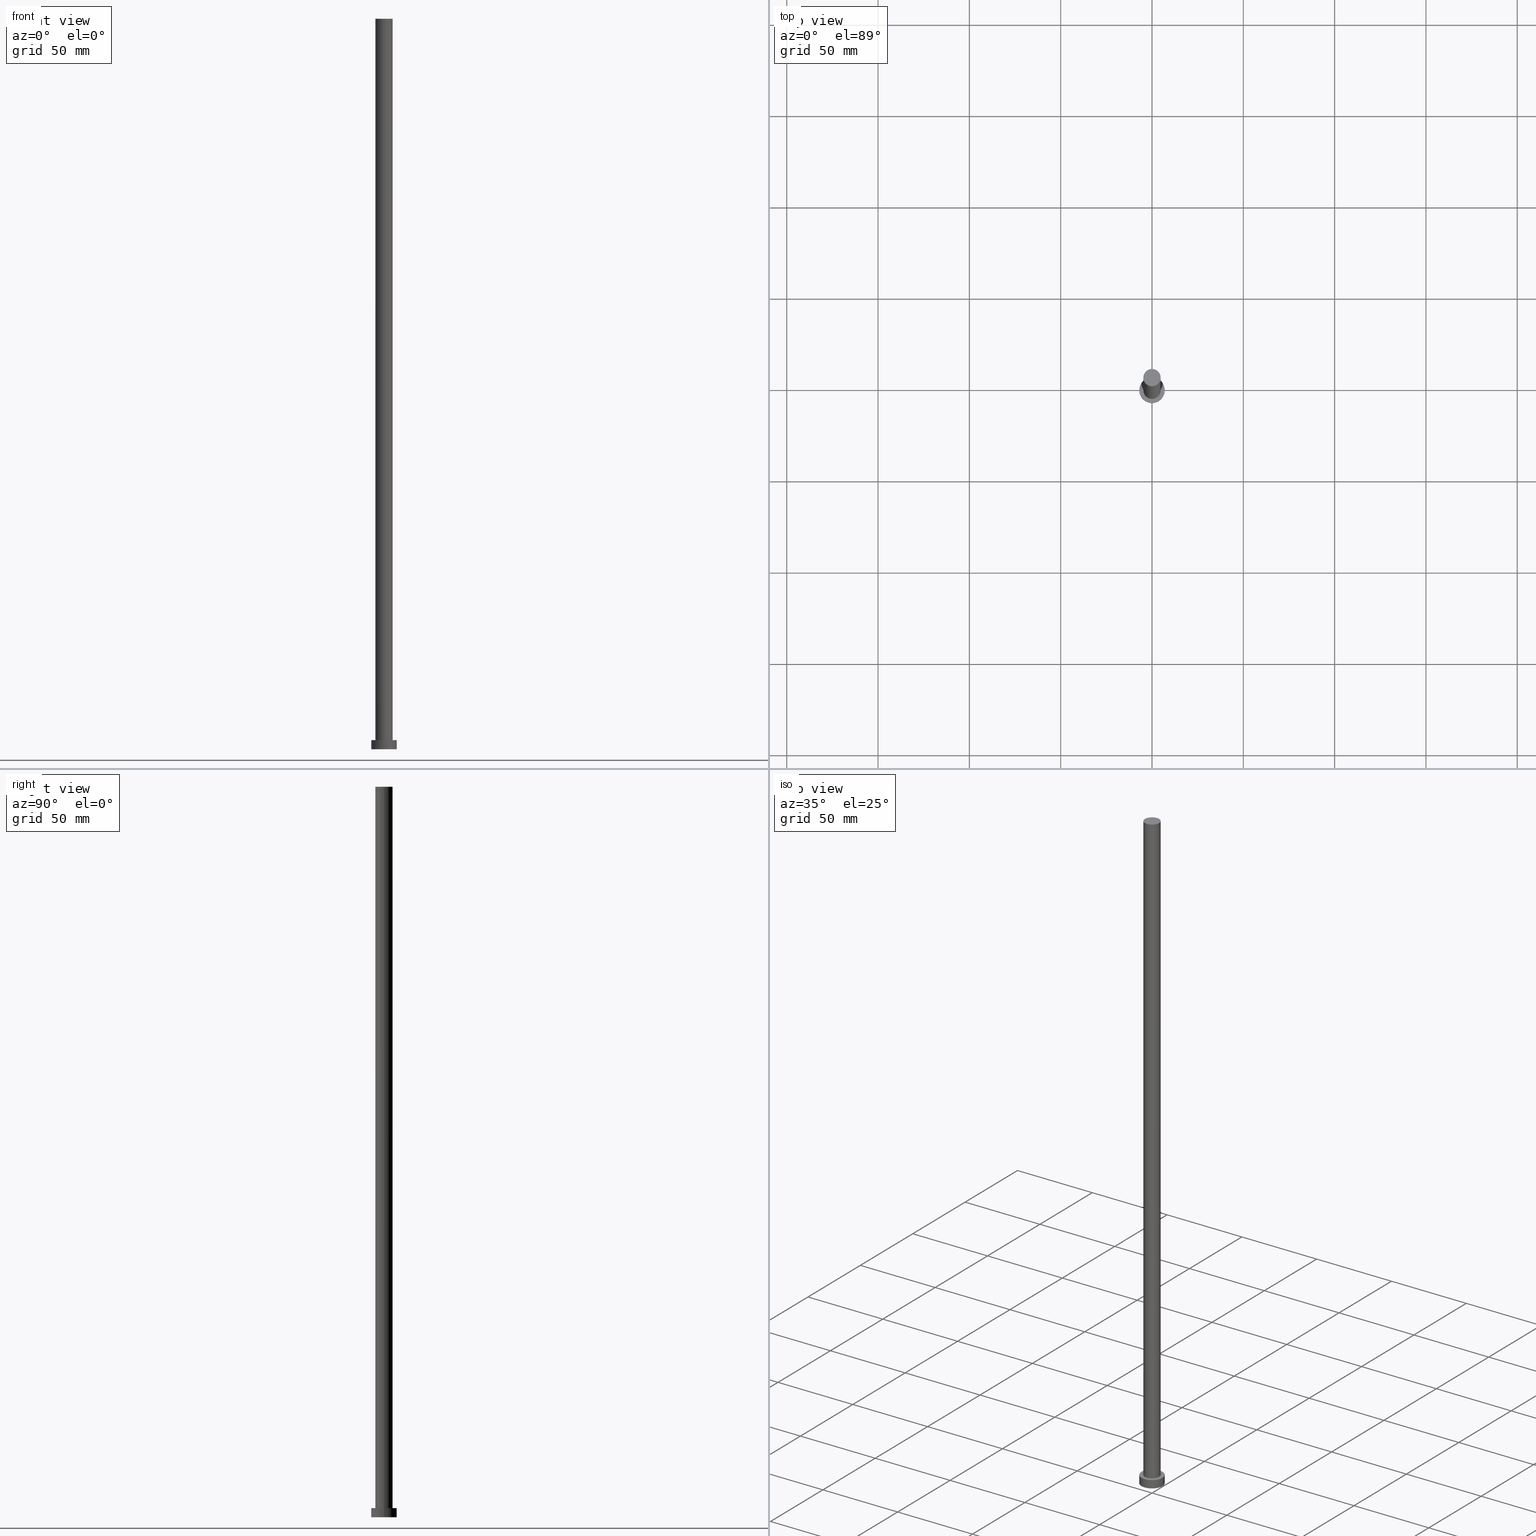
[diagram: canonical four-view strip — front | top / right | iso, engineering-drawing reading convention]
A machine part, canonical four-view strip (front | top / right | iso — engineering-drawing reading convention). The complete STEP part file that produces these views, byte-faithful:
ISO-10303-21;
HEADER;
FILE_DESCRIPTION (( 'STEP AP203' ),
    '1' );
FILE_NAME ('0fe4.STEP',
    '2026-02-06T12:37:14',
    ( '' ),
    ( '' ),
    'SwSTEP 2.0',
    'SolidWorks 2019',
    '' );
FILE_SCHEMA (( 'CONFIG_CONTROL_DESIGN' ));
ENDSEC;

DATA;
#1 =( NAMED_UNIT ( * ) SI_UNIT ( $, .STERADIAN. ) SOLID_ANGLE_UNIT ( ) );
#2 = DIRECTION ( 'NONE',  ( 1.000000000000000000, 0.000000000000000000, -0.000000000000000000 ) ) ;
#3 = APPLICATION_PROTOCOL_DEFINITION ( 'international standard', 'config_control_design', 1994, #43 ) ;
#4 = AXIS2_PLACEMENT_3D ( 'NONE', #95, #174, #137 ) ;
#5 = APPLICATION_CONTEXT ( 'configuration controlled 3d designs of mechanical parts and assemblies' ) ;
#6 = COORDINATED_UNIVERSAL_TIME_OFFSET ( 1, 0, .AHEAD. ) ;
#7 = EDGE_LOOP ( 'NONE', ( #169, #177, #166, #122 ) ) ;
#8 = APPROVAL_ROLE ( '' ) ;
#9 = APPROVAL_DATE_TIME ( #144, #27 ) ;
#10 = PERSON_AND_ORGANIZATION ( #125, #18 ) ;
#11 = ORIENTED_EDGE ( 'NONE', *, *, #22, .F. ) ;
#12 = ADVANCED_FACE ( 'NONE', ( #212 ), #35, .T. ) ;
#13 = AXIS2_PLACEMENT_3D ( 'NONE', #97, #216, #37 ) ;
#14 = ORIENTED_EDGE ( 'NONE', *, *, #251, .T. ) ;
#15 = DIRECTION ( 'NONE',  ( 1.000000000000000000, 0.000000000000000000, 0.000000000000000000 ) ) ;
#16 = CC_DESIGN_PERSON_AND_ORGANIZATION_ASSIGNMENT ( #185, #242, ( #147 ) ) ;
#17 = DIRECTION ( 'NONE',  ( -0.000000000000000000, -0.000000000000000000, -1.000000000000000000 ) ) ;
#18 = ORGANIZATION ( 'NEUR�EN�', 'NEUR�EN�', '' ) ;
#19 = DIRECTION ( 'NONE',  ( -1.000000000000000000, 0.000000000000000000, 0.000000000000000000 ) ) ;
#20 =( LENGTH_UNIT ( ) NAMED_UNIT ( * ) SI_UNIT ( .MILLI., .METRE. ) );
#21 = DIRECTION ( 'NONE',  ( 0.000000000000000000, 0.000000000000000000, 1.000000000000000000 ) ) ;
#22 = EDGE_CURVE ( 'NONE', #23, #92, #210, .T. ) ;
#23 = VERTEX_POINT ( 'NONE', #132 ) ;
#24 = SECURITY_CLASSIFICATION_LEVEL ( 'unclassified' ) ;
#25 = APPROVAL ( #86, 'NEUR�EN�' ) ;
#26 = PERSON_AND_ORGANIZATION ( #125, #18 ) ;
#27 = APPROVAL ( #30, 'NEUR�EN�' ) ;
#28 = DATE_AND_TIME ( #203, #52 ) ;
#29 = CC_DESIGN_APPROVAL ( #25, ( #70 ) ) ;
#30 = APPROVAL_STATUS ( 'not_yet_approved' ) ;
#31 = AXIS2_PLACEMENT_3D ( 'NONE', #75, #175, #19 ) ;
#32 = SECURITY_CLASSIFICATION ( '', '', #24 ) ;
#33 = EDGE_LOOP ( 'NONE', ( #143, #153, #41, #150 ) ) ;
#34 = DIRECTION ( 'NONE',  ( 0.000000000000000000, 0.000000000000000000, 1.000000000000000000 ) ) ;
#35 = CYLINDRICAL_SURFACE ( 'NONE', #68, 7.000000000000000000 ) ;
#36 = VECTOR ( 'NONE', #195, 1000.000000000000000 ) ;
#37 = DIRECTION ( 'NONE',  ( 1.000000000000000000, 0.000000000000000000, 0.000000000000000000 ) ) ;
#38 = LINE ( 'NONE', #160, #36 ) ;
#39 = DIRECTION ( 'NONE',  ( 0.000000000000000000, 0.000000000000000000, 1.000000000000000000 ) ) ;
#40 = CARTESIAN_POINT ( 'NONE',  ( 0.000000000000000000, 0.000000000000000000, 5.000000000000000000 ) ) ;
#41 = ORIENTED_EDGE ( 'NONE', *, *, #248, .T. ) ;
#42 = DATE_TIME_ROLE ( 'creation_date' ) ;
#43 = APPLICATION_CONTEXT ( 'configuration controlled 3d designs of mechanical parts and assemblies' ) ;
#44 = ADVANCED_FACE ( 'NONE', ( #110 ), #50, .T. ) ;
#45 = COORDINATED_UNIVERSAL_TIME_OFFSET ( 1, 0, .AHEAD. ) ;
#46 = COORDINATED_UNIVERSAL_TIME_OFFSET ( 1, 0, .AHEAD. ) ;
#47 = APPLICATION_PROTOCOL_DEFINITION ( 'international standard', 'config_control_design', 1994, #5 ) ;
#48 = PRODUCT_DEFINITION_SHAPE ( 'NONE', 'NONE',  #70 ) ;
#49 = VECTOR ( 'NONE', #17, 1000.000000000000000 ) ;
#50 = CYLINDRICAL_SURFACE ( 'NONE', #109, 4.750000000000000888 ) ;
#51 = EDGE_CURVE ( 'NONE', #108, #239, #229, .T. ) ;
#52 = LOCAL_TIME ( 13, 37, 14.00000000000000000, #163 ) ;
#53 = ORIENTED_EDGE ( 'NONE', *, *, #91, .F. ) ;
#54 = DIRECTION ( 'NONE',  ( -0.000000000000000000, -0.000000000000000000, -1.000000000000000000 ) ) ;
#55 = AXIS2_PLACEMENT_3D ( 'NONE', #81, #142, #74 ) ;
#56 =( NAMED_UNIT ( * ) PLANE_ANGLE_UNIT ( ) SI_UNIT ( $, .RADIAN. ) );
#57 = FACE_OUTER_BOUND ( 'NONE', #90, .T. ) ;
#58 = DESIGN_CONTEXT ( 'detailed design', #5, 'design' ) ;
#59 = DIRECTION ( 'NONE',  ( 0.000000000000000000, 0.000000000000000000, 1.000000000000000000 ) ) ;
#60 = CARTESIAN_POINT ( 'NONE',  ( 7.000000000000000000, 8.572527594031473190E-16, 5.000000000000000000 ) ) ;
#61 = ADVANCED_FACE ( 'NONE', ( #173, #130 ), #211, .T. ) ;
#62 = CARTESIAN_POINT ( 'NONE',  ( 4.750000000000000888, 5.817072295949927426E-16, 400.0000000000000000 ) ) ;
#63 = AXIS2_PLACEMENT_3D ( 'NONE', #135, #233, #98 ) ;
#64 = CARTESIAN_POINT ( 'NONE',  ( -4.750000000000000888, 0.000000000000000000, 5.000000000000000000 ) ) ;
#65 = ORIENTED_EDGE ( 'NONE', *, *, #167, .F. ) ;
#66 = DATE_AND_TIME ( #106, #194 ) ;
#67 = PERSON_AND_ORGANIZATION_ROLE ( 'classification_officer' ) ;
#68 = AXIS2_PLACEMENT_3D ( 'NONE', #225, #93, #231 ) ;
#69 = CC_DESIGN_PERSON_AND_ORGANIZATION_ASSIGNMENT ( #10, #207, ( #198 ) ) ;
#70 = PRODUCT_DEFINITION ( 'NEZN�M�', '', #147, #58 ) ;
#71 = DIRECTION ( 'NONE',  ( 1.000000000000000000, 0.000000000000000000, -0.000000000000000000 ) ) ;
#72 = LOCAL_TIME ( 13, 37, 14.00000000000000000, #6 ) ;
#73 = CARTESIAN_POINT ( 'NONE',  ( 4.750000000000000888, 5.817072295949927426E-16, 5.000000000000000000 ) ) ;
#74 = DIRECTION ( 'NONE',  ( 1.000000000000000000, 0.000000000000000000, 0.000000000000000000 ) ) ;
#75 = CARTESIAN_POINT ( 'NONE',  ( 0.000000000000000000, 0.000000000000000000, 400.0000000000000000 ) ) ;
#76 = VECTOR ( 'NONE', #79, 1000.000000000000000 ) ;
#77 = CARTESIAN_POINT ( 'NONE',  ( -7.000000000000000000, 0.000000000000000000, 0.000000000000000000 ) ) ;
#78 = CARTESIAN_POINT ( 'NONE',  ( 0.000000000000000000, 0.000000000000000000, 5.000000000000000000 ) ) ;
#79 = DIRECTION ( 'NONE',  ( -0.000000000000000000, -0.000000000000000000, -1.000000000000000000 ) ) ;
#80 = CIRCLE ( 'NONE', #4, 4.750000000000000888 ) ;
#81 = CARTESIAN_POINT ( 'NONE',  ( 0.000000000000000000, 0.000000000000000000, 5.000000000000000000 ) ) ;
#82 = CALENDAR_DATE ( 2026, 6, 2 ) ;
#83 = VERTEX_POINT ( 'NONE', #73 ) ;
#84 = PERSON_AND_ORGANIZATION ( #125, #18 ) ;
#85 = AXIS2_PLACEMENT_3D ( 'NONE', #157, #100, #200 ) ;
#86 = APPROVAL_STATUS ( 'not_yet_approved' ) ;
#87 = ORIENTED_EDGE ( 'NONE', *, *, #209, .T. ) ;
#88 = DIRECTION ( 'NONE',  ( 0.000000000000000000, 0.000000000000000000, 1.000000000000000000 ) ) ;
#89 = CC_DESIGN_APPROVAL ( #27, ( #32 ) ) ;
#90 = EDGE_LOOP ( 'NONE', ( #182, #65, #87, #120 ) ) ;
#91 = EDGE_CURVE ( 'NONE', #188, #99, #246, .T. ) ;
#92 = VERTEX_POINT ( 'NONE', #60 ) ;
#93 = DIRECTION ( 'NONE',  ( -0.000000000000000000, -0.000000000000000000, -1.000000000000000000 ) ) ;
#94 = UNCERTAINTY_MEASURE_WITH_UNIT (LENGTH_MEASURE( 1.000000000000000082E-05 ), #20, 'distance_accuracy_value', 'NONE');
#95 = CARTESIAN_POINT ( 'NONE',  ( 0.000000000000000000, 0.000000000000000000, 400.0000000000000000 ) ) ;
#96 = DIRECTION ( 'NONE',  ( 1.000000000000000000, 0.000000000000000000, 0.000000000000000000 ) ) ;
#97 = CARTESIAN_POINT ( 'NONE',  ( 0.000000000000000000, 0.000000000000000000, 0.000000000000000000 ) ) ;
#98 = DIRECTION ( 'NONE',  ( 1.000000000000000000, 0.000000000000000000, -0.000000000000000000 ) ) ;
#99 = VERTEX_POINT ( 'NONE', #77 ) ;
#100 = DIRECTION ( 'NONE',  ( 0.000000000000000000, 0.000000000000000000, 1.000000000000000000 ) ) ;
#101 = CC_DESIGN_SECURITY_CLASSIFICATION ( #32, ( #147 ) ) ;
#102 = VERTEX_POINT ( 'NONE', #64 ) ;
#103 = DATE_TIME_ROLE ( 'classification_date' ) ;
#104 = ORIENTED_EDGE ( 'NONE', *, *, #243, .F. ) ;
#105 = CALENDAR_DATE ( 2026, 6, 2 ) ;
#106 = CALENDAR_DATE ( 2026, 6, 2 ) ;
#107 = DATE_AND_TIME ( #121, #252 ) ;
#108 = VERTEX_POINT ( 'NONE', #62 ) ;
#109 = AXIS2_PLACEMENT_3D ( 'NONE', #131, #54, #187 ) ;
#110 = FACE_OUTER_BOUND ( 'NONE', #33, .T. ) ;
#111 = ADVANCED_FACE ( 'NONE', ( #57 ), #193, .T. ) ;
#112 = CARTESIAN_POINT ( 'NONE',  ( 0.000000000000000000, 0.000000000000000000, 5.000000000000000000 ) ) ;
#113 = ORIENTED_EDGE ( 'NONE', *, *, #22, .T. ) ;
#114 = FACE_OUTER_BOUND ( 'NONE', #199, .T. ) ;
#115 = DIRECTION ( 'NONE',  ( -1.000000000000000000, 0.000000000000000000, 0.000000000000000000 ) ) ;
#116 = APPROVAL_PERSON_ORGANIZATION ( #26, #25, #8 ) ;
#117 = AXIS2_PLACEMENT_3D ( 'NONE', #192, #250, #15 ) ;
#118 = CARTESIAN_POINT ( 'NONE',  ( -4.750000000000000888, 0.000000000000000000, 400.0000000000000000 ) ) ;
#119 = CYLINDRICAL_SURFACE ( 'NONE', #148, 7.000000000000000000 ) ;
#120 = ORIENTED_EDGE ( 'NONE', *, *, #126, .T. ) ;
#121 = CALENDAR_DATE ( 2026, 6, 2 ) ;
#122 = ORIENTED_EDGE ( 'NONE', *, *, #133, .F. ) ;
#123 = AXIS2_PLACEMENT_3D ( 'NONE', #152, #34, #189 ) ;
#124 = APPROVAL_ROLE ( '' ) ;
#125 = PERSON ( 'NEUR�EN�', 'NEUR�EN�', 'NEUR�EN�', ('NEUR�EN�'), ('NEUR�EN�'), ('NEUR�EN�') ) ;
#126 = EDGE_CURVE ( 'NONE', #102, #83, #138, .T. ) ;
#127 = PERSON_AND_ORGANIZATION ( #125, #18 ) ;
#128 = APPROVAL_DATE_TIME ( #28, #224 ) ;
#129 = CLOSED_SHELL ( 'NONE', ( #44, #180, #12, #61, #139, #111, #223 ) ) ;
#130 = FACE_OUTER_BOUND ( 'NONE', #206, .T. ) ;
#131 = CARTESIAN_POINT ( 'NONE',  ( 0.000000000000000000, 0.000000000000000000, 400.0000000000000000 ) ) ;
#132 = CARTESIAN_POINT ( 'NONE',  ( -7.000000000000000000, 0.000000000000000000, 5.000000000000000000 ) ) ;
#133 = EDGE_CURVE ( 'NONE', #23, #99, #156, .T. ) ;
#134 = CC_DESIGN_DATE_AND_TIME_ASSIGNMENT ( #66, #103, ( #32 ) ) ;
#135 = CARTESIAN_POINT ( 'NONE',  ( 0.000000000000000000, 0.000000000000000000, 0.000000000000000000 ) ) ;
#136 = CARTESIAN_POINT ( 'NONE',  ( 7.000000000000000000, 8.572527594031473190E-16, 0.000000000000000000 ) ) ;
#137 = DIRECTION ( 'NONE',  ( 1.000000000000000000, 0.000000000000000000, 0.000000000000000000 ) ) ;
#138 = CIRCLE ( 'NONE', #170, 4.750000000000000888 ) ;
#139 = ADVANCED_FACE ( 'NONE', ( #114 ), #236, .F. ) ;
#140 = CARTESIAN_POINT ( 'NONE',  ( 7.000000000000000000, 8.572527594031473190E-16, 5.000000000000000000 ) ) ;
#141 = ORIENTED_EDGE ( 'NONE', *, *, #126, .F. ) ;
#142 = DIRECTION ( 'NONE',  ( 0.000000000000000000, 0.000000000000000000, 1.000000000000000000 ) ) ;
#143 = ORIENTED_EDGE ( 'NONE', *, *, #51, .F. ) ;
#144 = DATE_AND_TIME ( #82, #72 ) ;
#145 = CC_DESIGN_APPROVAL ( #224, ( #147 ) ) ;
#146 = AXIS2_PLACEMENT_3D ( 'NONE', #238, #39, #2 ) ;
#147 = PRODUCT_DEFINITION_FORMATION_WITH_SPECIFIED_SOURCE ( 'LIBOVOLN�', '', #198, .NOT_KNOWN. ) ;
#148 = AXIS2_PLACEMENT_3D ( 'NONE', #78, #254, #115 ) ;
#149 = ORIENTED_EDGE ( 'NONE', *, *, #151, .T. ) ;
#150 = ORIENTED_EDGE ( 'NONE', *, *, #209, .F. ) ;
#151 = EDGE_CURVE ( 'NONE', #99, #188, #161, .T. ) ;
#152 = CARTESIAN_POINT ( 'NONE',  ( 0.000000000000000000, 0.000000000000000000, 0.000000000000000000 ) ) ;
#153 = ORIENTED_EDGE ( 'NONE', *, *, #159, .T. ) ;
#154 = DIRECTION ( 'NONE',  ( 1.000000000000000000, 0.000000000000000000, 0.000000000000000000 ) ) ;
#155 = AXIS2_PLACEMENT_3D ( 'NONE', #215, #59, #96 ) ;
#156 = LINE ( 'NONE', #255, #76 ) ;
#157 = CARTESIAN_POINT ( 'NONE',  ( 0.000000000000000000, 0.000000000000000000, 0.000000000000000000 ) ) ;
#158 = FACE_OUTER_BOUND ( 'NONE', #247, .T. ) ;
#159 = EDGE_CURVE ( 'NONE', #108, #83, #176, .T. ) ;
#160 = CARTESIAN_POINT ( 'NONE',  ( -4.750000000000000888, 0.000000000000000000, 400.0000000000000000 ) ) ;
#161 = CIRCLE ( 'NONE', #13, 7.000000000000000000 ) ;
#162 = MECHANICAL_CONTEXT ( 'NONE', #43, 'mechanical' ) ;
#163 = COORDINATED_UNIVERSAL_TIME_OFFSET ( 1, 0, .AHEAD. ) ;
#164 = PERSON_AND_ORGANIZATION ( #125, #18 ) ;
#165 = PERSON_AND_ORGANIZATION ( #125, #18 ) ;
#166 = ORIENTED_EDGE ( 'NONE', *, *, #91, .T. ) ;
#167 = EDGE_CURVE ( 'NONE', #239, #108, #80, .T. ) ;
#168 = APPROVAL_PERSON_ORGANIZATION ( #164, #224, #181 ) ;
#169 = ORIENTED_EDGE ( 'NONE', *, *, #251, .F. ) ;
#170 = AXIS2_PLACEMENT_3D ( 'NONE', #40, #21, #154 ) ;
#171 = EDGE_LOOP ( 'NONE', ( #141, #217 ) ) ;
#172 = CC_DESIGN_PERSON_AND_ORGANIZATION_ASSIGNMENT ( #221, #67, ( #32 ) ) ;
#173 = FACE_BOUND ( 'NONE', #171, .T. ) ;
#174 = DIRECTION ( 'NONE',  ( 0.000000000000000000, 0.000000000000000000, 1.000000000000000000 ) ) ;
#175 = DIRECTION ( 'NONE',  ( -0.000000000000000000, -0.000000000000000000, -1.000000000000000000 ) ) ;
#176 = LINE ( 'NONE', #214, #49 ) ;
#177 = ORIENTED_EDGE ( 'NONE', *, *, #243, .T. ) ;
#178 = VECTOR ( 'NONE', #201, 1000.000000000000000 ) ;
#179 = ORIENTED_EDGE ( 'NONE', *, *, #167, .T. ) ;
#180 = ADVANCED_FACE ( 'NONE', ( #218 ), #119, .T. ) ;
#181 = APPROVAL_ROLE ( '' ) ;
#182 = ORIENTED_EDGE ( 'NONE', *, *, #159, .F. ) ;
#183 = DATE_AND_TIME ( #105, #222 ) ;
#184 = APPROVAL_STATUS ( 'not_yet_approved' ) ;
#185 = PERSON_AND_ORGANIZATION ( #125, #18 ) ;
#186 = CC_DESIGN_DATE_AND_TIME_ASSIGNMENT ( #107, #42, ( #70 ) ) ;
#187 = DIRECTION ( 'NONE',  ( -1.000000000000000000, 0.000000000000000000, 0.000000000000000000 ) ) ;
#188 = VERTEX_POINT ( 'NONE', #136 ) ;
#189 = DIRECTION ( 'NONE',  ( 1.000000000000000000, 0.000000000000000000, 0.000000000000000000 ) ) ;
#190 = AXIS2_PLACEMENT_3D ( 'NONE', #191, #88, #71 ) ;
#191 = CARTESIAN_POINT ( 'NONE',  ( 0.000000000000000000, 0.000000000000000000, 5.000000000000000000 ) ) ;
#192 = CARTESIAN_POINT ( 'NONE',  ( 0.000000000000000000, 0.000000000000000000, 400.0000000000000000 ) ) ;
#193 = CYLINDRICAL_SURFACE ( 'NONE', #31, 4.750000000000000888 ) ;
#194 = LOCAL_TIME ( 13, 37, 14.00000000000000000, #240 ) ;
#195 = DIRECTION ( 'NONE',  ( -0.000000000000000000, -0.000000000000000000, -1.000000000000000000 ) ) ;
#196 = AXIS2_PLACEMENT_3D ( 'NONE', #112, #227, #249 ) ;
#197 = LINE ( 'NONE', #140, #178 ) ;
#198 = PRODUCT ( '0fe4', '0fe4', '', ( #162 ) ) ;
#199 = EDGE_LOOP ( 'NONE', ( #230, #53 ) ) ;
#200 = DIRECTION ( 'NONE',  ( 1.000000000000000000, 0.000000000000000000, 0.000000000000000000 ) ) ;
#201 = DIRECTION ( 'NONE',  ( -0.000000000000000000, -0.000000000000000000, -1.000000000000000000 ) ) ;
#202 = EDGE_LOOP ( 'NONE', ( #104, #11, #232, #149 ) ) ;
#203 = CALENDAR_DATE ( 2026, 6, 2 ) ;
#204 =( GEOMETRIC_REPRESENTATION_CONTEXT ( 3 ) GLOBAL_UNCERTAINTY_ASSIGNED_CONTEXT ( ( #94 ) ) GLOBAL_UNIT_ASSIGNED_CONTEXT ( ( #20, #56, #1 ) ) REPRESENTATION_CONTEXT ( 'NONE', 'WORKASPACE' ) );
#205 = CIRCLE ( 'NONE', #155, 7.000000000000000000 ) ;
#206 = EDGE_LOOP ( 'NONE', ( #113, #14 ) ) ;
#207 = PERSON_AND_ORGANIZATION_ROLE ( 'design_owner' ) ;
#208 = APPROVAL_DATE_TIME ( #183, #25 ) ;
#209 = EDGE_CURVE ( 'NONE', #239, #102, #38, .T. ) ;
#210 = CIRCLE ( 'NONE', #196, 7.000000000000000000 ) ;
#211 = PLANE ( 'NONE',  #190 ) ;
#212 = FACE_OUTER_BOUND ( 'NONE', #202, .T. ) ;
#213 = MANIFOLD_SOLID_BREP ( 'P�idat vysunut�m3', #129 ) ;
#214 = CARTESIAN_POINT ( 'NONE',  ( 4.750000000000000888, 5.817072295949927426E-16, 400.0000000000000000 ) ) ;
#215 = CARTESIAN_POINT ( 'NONE',  ( 0.000000000000000000, 0.000000000000000000, 5.000000000000000000 ) ) ;
#216 = DIRECTION ( 'NONE',  ( 0.000000000000000000, 0.000000000000000000, 1.000000000000000000 ) ) ;
#217 = ORIENTED_EDGE ( 'NONE', *, *, #248, .F. ) ;
#218 = FACE_OUTER_BOUND ( 'NONE', #7, .T. ) ;
#219 = CC_DESIGN_PERSON_AND_ORGANIZATION_ASSIGNMENT ( #127, #244, ( #147 ) ) ;
#220 = SHAPE_DEFINITION_REPRESENTATION ( #48, #226 ) ;
#221 = PERSON_AND_ORGANIZATION ( #125, #18 ) ;
#222 = LOCAL_TIME ( 13, 37, 14.00000000000000000, #45 ) ;
#223 = ADVANCED_FACE ( 'NONE', ( #158 ), #237, .T. ) ;
#224 = APPROVAL ( #184, 'NEUR�EN�' ) ;
#225 = CARTESIAN_POINT ( 'NONE',  ( 0.000000000000000000, 0.000000000000000000, 5.000000000000000000 ) ) ;
#226 = ADVANCED_BREP_SHAPE_REPRESENTATION ( '0fe4', ( #213, #85 ), #204 ) ;
#227 = DIRECTION ( 'NONE',  ( 0.000000000000000000, 0.000000000000000000, 1.000000000000000000 ) ) ;
#228 = APPROVAL_PERSON_ORGANIZATION ( #165, #27, #124 ) ;
#229 = CIRCLE ( 'NONE', #117, 4.750000000000000888 ) ;
#230 = ORIENTED_EDGE ( 'NONE', *, *, #151, .F. ) ;
#231 = DIRECTION ( 'NONE',  ( -1.000000000000000000, 0.000000000000000000, 0.000000000000000000 ) ) ;
#232 = ORIENTED_EDGE ( 'NONE', *, *, #133, .T. ) ;
#233 = DIRECTION ( 'NONE',  ( 0.000000000000000000, 0.000000000000000000, 1.000000000000000000 ) ) ;
#234 = CC_DESIGN_PERSON_AND_ORGANIZATION_ASSIGNMENT ( #84, #245, ( #70 ) ) ;
#235 = PRODUCT_RELATED_PRODUCT_CATEGORY ( 'detail', '', ( #198 ) ) ;
#236 = PLANE ( 'NONE',  #63 ) ;
#237 = PLANE ( 'NONE',  #146 ) ;
#238 = CARTESIAN_POINT ( 'NONE',  ( 0.000000000000000000, 0.000000000000000000, 400.0000000000000000 ) ) ;
#239 = VERTEX_POINT ( 'NONE', #118 ) ;
#240 = COORDINATED_UNIVERSAL_TIME_OFFSET ( 1, 0, .AHEAD. ) ;
#241 = ORIENTED_EDGE ( 'NONE', *, *, #51, .T. ) ;
#242 = PERSON_AND_ORGANIZATION_ROLE ( 'design_supplier' ) ;
#243 = EDGE_CURVE ( 'NONE', #92, #188, #197, .T. ) ;
#244 = PERSON_AND_ORGANIZATION_ROLE ( 'creator' ) ;
#245 = PERSON_AND_ORGANIZATION_ROLE ( 'creator' ) ;
#246 = CIRCLE ( 'NONE', #123, 7.000000000000000000 ) ;
#247 = EDGE_LOOP ( 'NONE', ( #179, #241 ) ) ;
#248 = EDGE_CURVE ( 'NONE', #83, #102, #253, .T. ) ;
#249 = DIRECTION ( 'NONE',  ( 1.000000000000000000, 0.000000000000000000, 0.000000000000000000 ) ) ;
#250 = DIRECTION ( 'NONE',  ( 0.000000000000000000, 0.000000000000000000, 1.000000000000000000 ) ) ;
#251 = EDGE_CURVE ( 'NONE', #92, #23, #205, .T. ) ;
#252 = LOCAL_TIME ( 13, 37, 14.00000000000000000, #46 ) ;
#253 = CIRCLE ( 'NONE', #55, 4.750000000000000888 ) ;
#254 = DIRECTION ( 'NONE',  ( -0.000000000000000000, -0.000000000000000000, -1.000000000000000000 ) ) ;
#255 = CARTESIAN_POINT ( 'NONE',  ( -7.000000000000000000, 0.000000000000000000, 5.000000000000000000 ) ) ;
ENDSEC;
END-ISO-10303-21;
